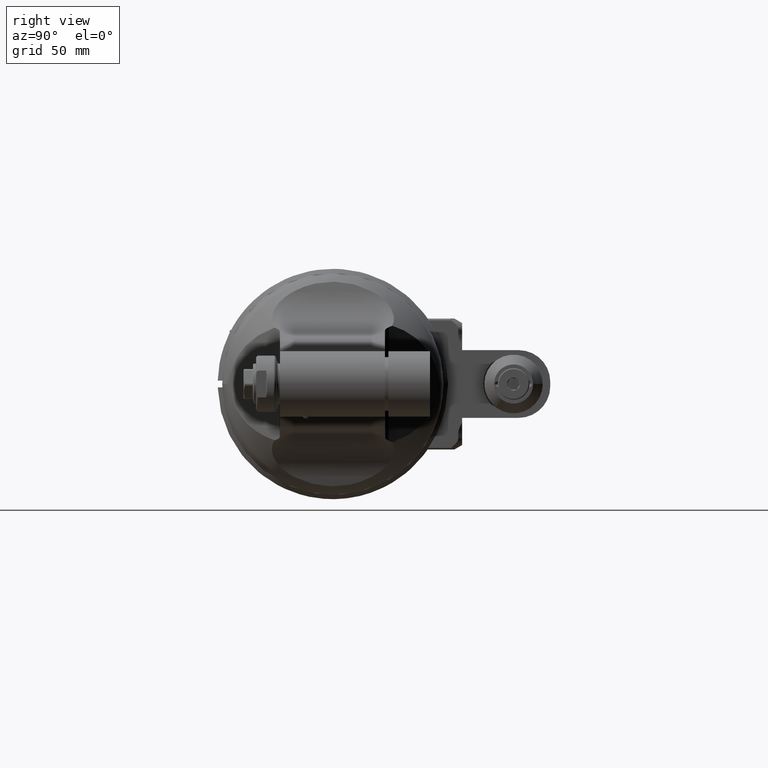
[diagram: clean part render]
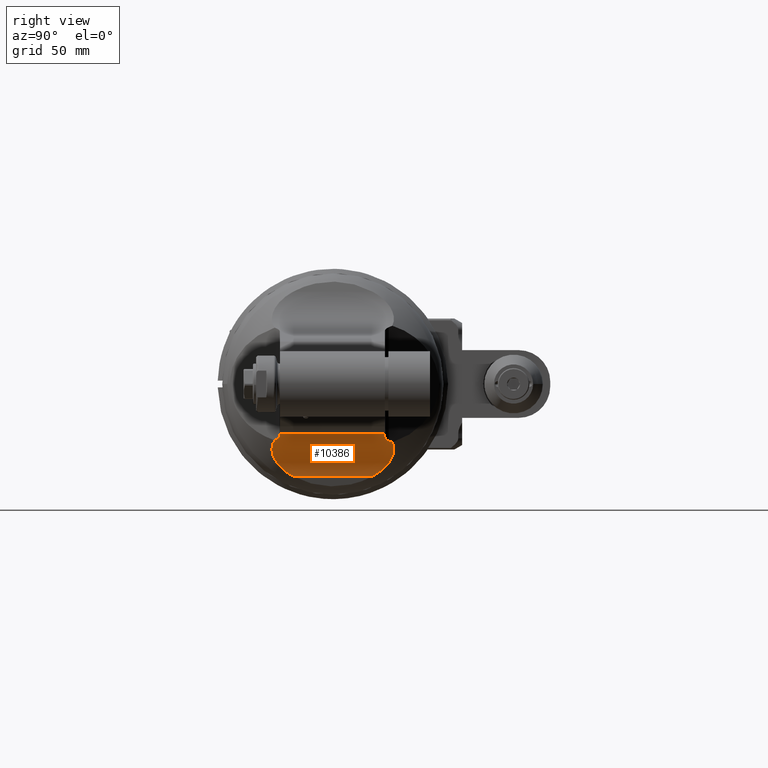
[diagram: same view with one face highlighted and labeled with its STEP entity id]
A machine part, right view. The second image highlights one B-rep face of the part: STEP entity #10386.
In plain terms, the highlighted cylindrical surface (partial cylindrical patch) has radius 26 mm, axis along (-0, 1, 0).
Its self-contained STEP definition (entity closure, byte-faithful):
#15=ELLIPSE('',#11335,78.9687927245387,46.6795429101251);
#1065=FACE_OUTER_BOUND('',#1670,.T.);
#1670=EDGE_LOOP('',(#8566,#8567,#8568,#8569,#8570,#8571,#8572,#8573,#8574,
#8575));
#2185=CIRCLE('',#11307,26.);
#2189=CIRCLE('',#11318,26.);
#2197=CIRCLE('',#11334,61.1215133783264);
#2467=B_SPLINE_CURVE_WITH_KNOTS('',3,(#58723,#58724,#58725,#58726,#58727,
#58728,#58729,#58730),.UNSPECIFIED.,.F.,.F.,(4,2,2,4),(-1.01926799667052,
-0.95601071410436,-0.787581854620934,-0.619152995137509),.UNSPECIFIED.);
#2472=B_SPLINE_CURVE_WITH_KNOTS('',3,(#58858,#58859,#58860,#58861,#58862,
#58863,#58864,#58865),.UNSPECIFIED.,.F.,.F.,(4,2,2,4),(-0.634143604519555,
-0.468183361072118,-0.30222311762468,-0.238269728376609),.UNSPECIFIED.);
#2473=B_SPLINE_CURVE_WITH_KNOTS('',3,(#58869,#58870,#58871,#58872,#58873,
#58874,#58875,#58876,#58877,#58878,#58879,#58880,#58881,#58882,#58883,#58884),
 .UNSPECIFIED.,.F.,.F.,(4,2,2,2,2,2,2,4),(-4.1196821726461,-3.6911833808013,
-3.39155951841451,-3.09193565602771,-2.73432247619377,-2.37670929635983,
-1.78253197226987,-1.7550047310812),.UNSPECIFIED.);
#2474=B_SPLINE_CURVE_WITH_KNOTS('',3,(#58888,#58889,#58890,#58891,#58892,
#58893,#58894,#58895,#58896,#58897,#58898,#58899,#58900,#58901,#58902,#58903),
 .UNSPECIFIED.,.F.,.F.,(4,2,2,2,2,2,2,4),(1.75500473105324,1.78253197226987,
2.37670929635983,2.73432247619377,3.09193565602771,3.39155951841451,3.6911833808013,
3.95042095255802),.UNSPECIFIED.);
#2916=LINE('',#58855,#3751);
#2917=LINE('',#58886,#3752);
#3751=VECTOR('',#13398,46.5);
#3752=VECTOR('',#13403,35.24839661005);
#4718=VERTEX_POINT('',#58695);
#4728=VERTEX_POINT('',#58716);
#4730=VERTEX_POINT('',#58722);
#4741=VERTEX_POINT('',#58805);
#4742=VERTEX_POINT('',#58807);
#4759=VERTEX_POINT('',#58857);
#4760=VERTEX_POINT('',#58866);
#4761=VERTEX_POINT('',#58868);
#4762=VERTEX_POINT('',#58885);
#4763=VERTEX_POINT('',#58887);
#6113=EDGE_CURVE('',#4728,#4718,#2185,.T.);
#6115=EDGE_CURVE('',#4730,#4718,#2467,.T.);
#6132=EDGE_CURVE('',#4741,#4742,#2189,.T.);
#6156=EDGE_CURVE('',#4728,#4742,#2916,.T.);
#6157=EDGE_CURVE('',#4741,#4759,#2472,.T.);
#6158=EDGE_CURVE('',#4759,#4760,#2197,.T.);
#6159=EDGE_CURVE('',#4760,#4761,#2473,.T.);
#6160=EDGE_CURVE('',#4761,#4762,#2917,.T.);
#6161=EDGE_CURVE('',#4762,#4763,#2474,.T.);
#6162=EDGE_CURVE('',#4763,#4730,#15,.T.);
#8566=ORIENTED_EDGE('',*,*,#6156,.T.);
#8567=ORIENTED_EDGE('',*,*,#6132,.F.);
#8568=ORIENTED_EDGE('',*,*,#6157,.T.);
#8569=ORIENTED_EDGE('',*,*,#6158,.T.);
#8570=ORIENTED_EDGE('',*,*,#6159,.T.);
#8571=ORIENTED_EDGE('',*,*,#6160,.T.);
#8572=ORIENTED_EDGE('',*,*,#6161,.T.);
#8573=ORIENTED_EDGE('',*,*,#6162,.T.);
#8574=ORIENTED_EDGE('',*,*,#6115,.T.);
#8575=ORIENTED_EDGE('',*,*,#6113,.F.);
#9972=CYLINDRICAL_SURFACE('',#11333,26.);
#10386=ADVANCED_FACE('',(#1065),#9972,.F.);
#11307=AXIS2_PLACEMENT_3D('',#58718,#13321,#13322);
#11318=AXIS2_PLACEMENT_3D('',#58808,#13352,#13353);
#11333=AXIS2_PLACEMENT_3D('',#58856,#13399,#13400);
#11334=AXIS2_PLACEMENT_3D('',#58867,#13401,#13402);
#11335=AXIS2_PLACEMENT_3D('',#58904,#13404,#13405);
#13321=DIRECTION('center_axis',(0.,-1.,0.));
#13322=DIRECTION('ref_axis',(-0.173648177667193,0.,0.984807753012162));
#13352=DIRECTION('center_axis',(0.,1.,0.));
#13353=DIRECTION('ref_axis',(-0.350798944470403,0.,0.936450799860009));
#13398=DIRECTION('',(0.,-1.,0.));
#13399=DIRECTION('center_axis',(0.,1.,0.));
#13400=DIRECTION('ref_axis',(1.,0.,0.));
#13401=DIRECTION('center_axis',(0.819155309111649,-0.573571773392739,-1.79250509594205E-5));
#13402=DIRECTION('ref_axis',(-0.17678701998738,-0.252510818952798,0.951306804283334));
#13403=DIRECTION('',(-2.498402059089E-12,1.,-7.617969357351E-12));
#13404=DIRECTION('center_axis',(0.819186844003443,0.573526708428818,-0.000171261448242765));
#13405=DIRECTION('ref_axis',(0.540125022672275,-0.771578479446381,-0.336052986801911));
#58695=CARTESIAN_POINT('',(54.73216465252,23.,-23.50722286254));
#58716=CARTESIAN_POINT('',(60.03829212761,23.,-21.97603174258));
#58718=CARTESIAN_POINT('Origin',(64.55314474696,23.,-47.5810333209));
#58722=CARTESIAN_POINT('',(51.45555647536,24.7056942546,-25.12099811461));
#58723=CARTESIAN_POINT('Ctrl Pts',(51.4555564753612,24.7056942545999,-25.1209981146124));
#58724=CARTESIAN_POINT('Ctrl Pts',(51.5753408439917,24.5346244473009,-25.0511457600953));
#58725=CARTESIAN_POINT('Ctrl Pts',(51.7059494581249,24.3768949906602,-24.9763026179841));
#58726=CARTESIAN_POINT('Ctrl Pts',(52.2037708472152,23.8565480079489,-24.6973038563181));
#58727=CARTESIAN_POINT('Ctrl Pts',(52.6603225400345,23.5351211073212,-24.4537188362212));
#58728=CARTESIAN_POINT('Ctrl Pts',(53.6643756978693,23.1067054262353,-23.9643738640769));
#58729=CARTESIAN_POINT('Ctrl Pts',(54.2123281859922,23.,-23.7192916415636));
#58730=CARTESIAN_POINT('Ctrl Pts',(54.73216465252,23.,-23.5072228625489));
#58805=CARTESIAN_POINT('',(55.43237219073,-23.5,-23.23331252454));
#58807=CARTESIAN_POINT('',(60.03829212761,-23.5,-21.97603174258));
#58808=CARTESIAN_POINT('Origin',(64.55314474696,-23.5,-47.5810333209));
#58855=CARTESIAN_POINT('',(60.03829212761,23.,-21.97603174258));
#58856=CARTESIAN_POINT('Origin',(64.55314474696,0.,-47.5810333209));
#58857=CARTESIAN_POINT('',(52.15576401357,-25.2056942546,-24.72704130743));
#58858=CARTESIAN_POINT('Ctrl Pts',(55.43237219073,-23.5,-23.2333125245396));
#58859=CARTESIAN_POINT('Ctrl Pts',(54.9143268483256,-23.5,-23.4273747852909));
#58860=CARTESIAN_POINT('Ctrl Pts',(54.3678108661031,-23.6060548904747,-23.6527927473859));
#58861=CARTESIAN_POINT('Ctrl Pts',(53.3663020266744,-24.0319381493228,-24.1043156376075));
#58862=CARTESIAN_POINT('Ctrl Pts',(52.9108917322444,-24.3515229478473,-24.3297240020591));
#58863=CARTESIAN_POINT('Ctrl Pts',(52.411048502382,-24.8709674705563,-24.5898596612022));
#58864=CARTESIAN_POINT('Ctrl Pts',(52.2777133018516,-25.0315326216183,-24.6608886739683));
#58865=CARTESIAN_POINT('Ctrl Pts',(52.155764013572,-25.2056942545987,-24.7270413074372));
#58866=CARTESIAN_POINT('',(51.76423686831,-25.76485296668,-24.94381098088));
#58867=CARTESIAN_POINT('Origin',(62.569727075584,-10.3310095678844,-83.0891225457783));
#58868=CARTESIAN_POINT('',(39.43907326322,-17.62419830511,-40.85173814904));
#58869=CARTESIAN_POINT('Ctrl Pts',(51.7642368683103,-25.764852966678,-24.943810980882));
#58870=CARTESIAN_POINT('Ctrl Pts',(50.5563175668249,-26.2814142669372,-25.6262254767731));
#58871=CARTESIAN_POINT('Ctrl Pts',(49.3233002074889,-26.6813641345671,-26.4556150781762));
#58872=CARTESIAN_POINT('Ctrl Pts',(47.3527718095707,-27.0206715689457,-28.055709602424));
#58873=CARTESIAN_POINT('Ctrl Pts',(46.5754988807068,-27.0631655307252,-28.769610398774));
#58874=CARTESIAN_POINT('Ctrl Pts',(45.1408364903172,-26.928828024518,-30.2539541892921));
#58875=CARTESIAN_POINT('Ctrl Pts',(44.4833891250785,-26.7515201873074,-31.0242980645363));
#58876=CARTESIAN_POINT('Ctrl Pts',(43.2048615199485,-26.1431500897146,-32.6960679135348));
#58877=CARTESIAN_POINT('Ctrl Pts',(42.546578790386,-25.6262824137681,-33.6912935538658));
#58878=CARTESIAN_POINT('Ctrl Pts',(41.4504452654249,-24.2857621006101,-35.6027586369876));
#58879=CARTESIAN_POINT('Ctrl Pts',(41.0087793176665,-23.4640109036862,-36.5181412902263));
#58880=CARTESIAN_POINT('Ctrl Pts',(40.1128481386325,-21.2432134325854,-38.5992416820879));
#58881=CARTESIAN_POINT('Ctrl Pts',(39.7430630256033,-19.6305258381362,-39.7397040921012));
#58882=CARTESIAN_POINT('Ctrl Pts',(39.4631801554316,-17.7882881645321,-40.7622445585138));
#58883=CARTESIAN_POINT('Ctrl Pts',(39.4510158797674,-17.7063995062127,-40.8071676973356));
#58884=CARTESIAN_POINT('Ctrl Pts',(39.4390732632355,-17.6241983050934,-40.8517381490135));
#58885=CARTESIAN_POINT('',(39.43907326313,17.62419830494,-40.85173814931));
#58886=CARTESIAN_POINT('',(39.43907326322,-17.62419830511,-40.85173814904));
#58887=CARTESIAN_POINT('',(50.32663557924,26.31796038216,-25.81853261668));
#58888=CARTESIAN_POINT('Ctrl Pts',(39.4390732631991,17.6241983048429,-40.8517381491494));
#58889=CARTESIAN_POINT('Ctrl Pts',(39.4510158797427,17.7063995060463,-40.8071676974269));
#58890=CARTESIAN_POINT('Ctrl Pts',(39.463180155419,17.7882881644492,-40.7622445585598));
#58891=CARTESIAN_POINT('Ctrl Pts',(39.7430630256033,19.6305258381362,-39.7397040921012));
#58892=CARTESIAN_POINT('Ctrl Pts',(40.1128481386325,21.2432134325854,-38.5992416820879));
#58893=CARTESIAN_POINT('Ctrl Pts',(41.0087793176665,23.4640109036862,-36.5181412902263));
#58894=CARTESIAN_POINT('Ctrl Pts',(41.4504452654249,24.2857621006101,-35.6027586369876));
#58895=CARTESIAN_POINT('Ctrl Pts',(42.546578790386,25.6262824137681,-33.6912935538658));
#58896=CARTESIAN_POINT('Ctrl Pts',(43.2048615199485,26.1431500897146,-32.6960679135348));
#58897=CARTESIAN_POINT('Ctrl Pts',(44.4833891250785,26.7515201873074,-31.0242980645363));
#58898=CARTESIAN_POINT('Ctrl Pts',(45.1408364903172,26.928828024518,-30.2539541892921));
#58899=CARTESIAN_POINT('Ctrl Pts',(46.5754988807068,27.0631655307251,-28.769610398774));
#58900=CARTESIAN_POINT('Ctrl Pts',(47.3527718095707,27.0206715689457,-28.055709602424));
#58901=CARTESIAN_POINT('Ctrl Pts',(48.8652262292773,26.7602403925631,-26.827577068174));
#58902=CARTESIAN_POINT('Ctrl Pts',(49.5931269071164,26.5670459568292,-26.2980394523418));
#58903=CARTESIAN_POINT('Ctrl Pts',(50.3266355792421,26.3179603821512,-25.8185326166878));
#58904=CARTESIAN_POINT('Origin',(80.1123565418378,-16.2399727042879,-72.7673875551931));